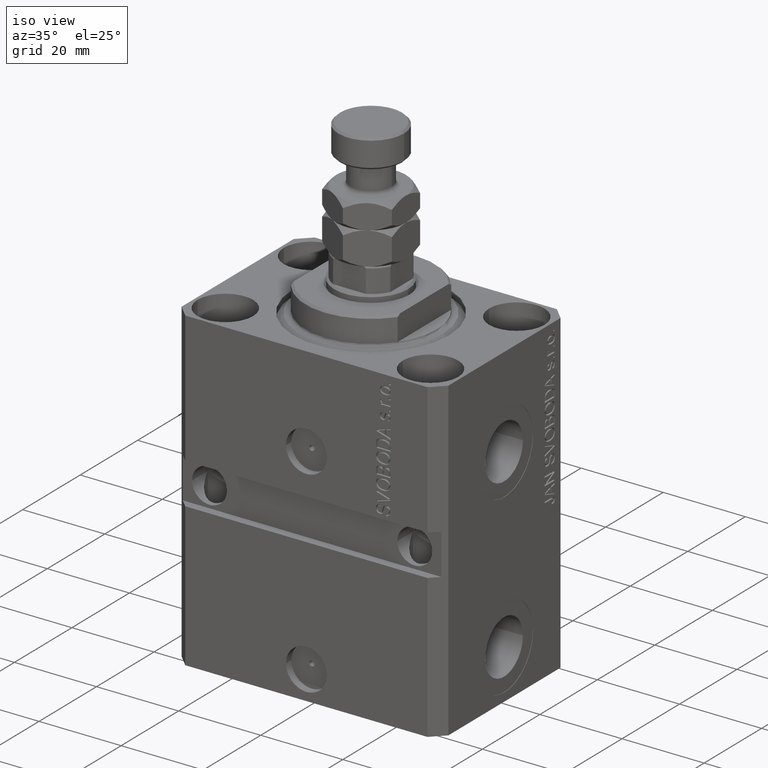
[diagram: clean part render]
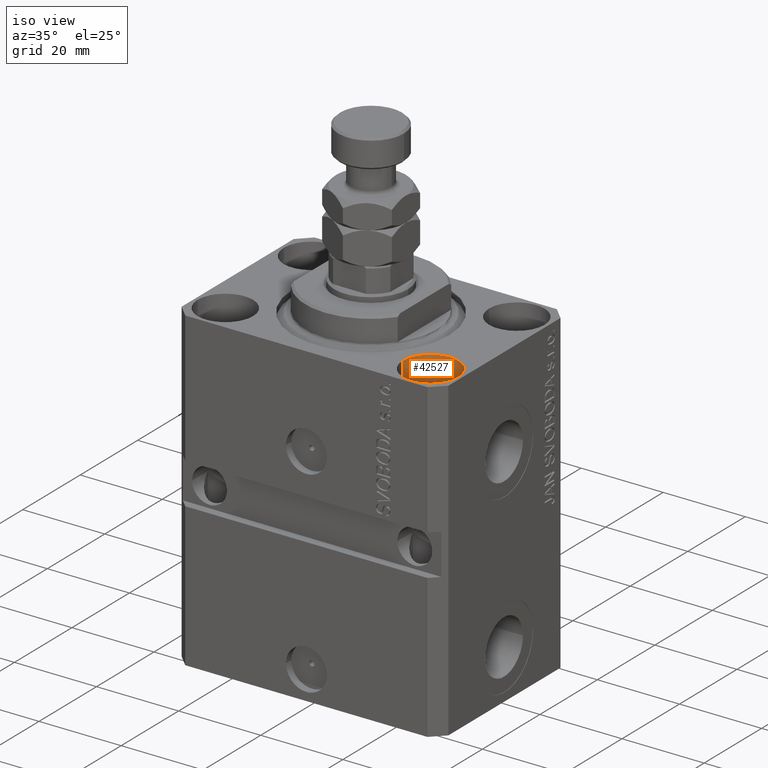
[diagram: same view with one face highlighted and labeled with its STEP entity id]
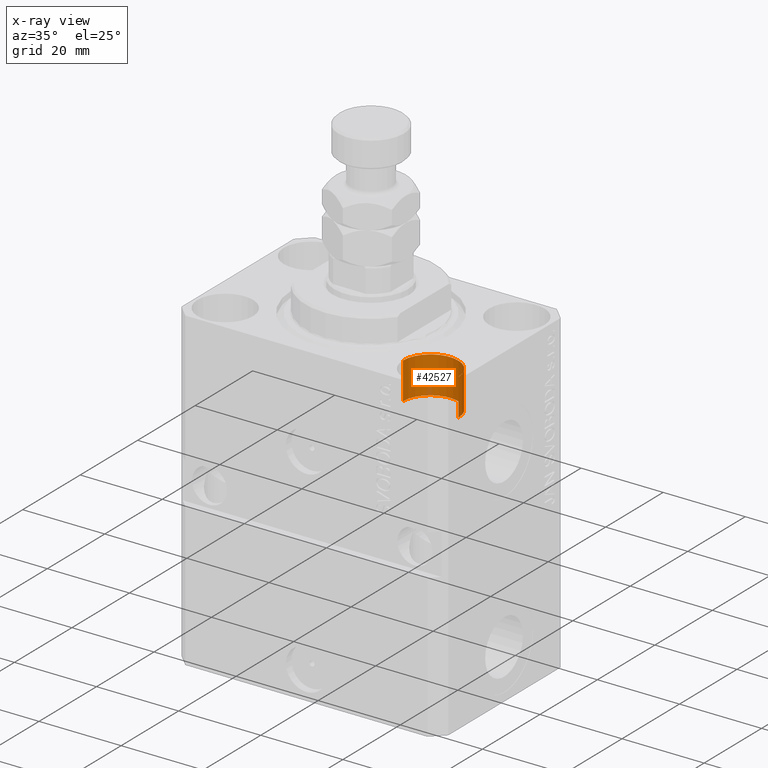
[diagram: x-ray of the same camera — body ghosted, the highlighted face saturated]
A machine part, iso view. The second image highlights one B-rep face of the part: STEP entity #42527.
The next image is the same camera in x-ray: the body ghosted, the highlighted face saturated — about 2% of this face is hidden behind the body in this view.
In plain terms, the highlighted cylindrical surface (edge-blend (fillet) strip) has radius 6.75 mm, axis along (0, 0, 1).
Its self-contained STEP definition (entity closure, byte-faithful):
#1559 = DIRECTION ( 'NONE',  ( 1.000000000000000000, 0.000000000000000000, 0.000000000000000000 ) ) ;
#2590 = LINE ( 'NONE', #10817, #48492 ) ;
#3853 = AXIS2_PLACEMENT_3D ( 'NONE', #31514, #39260, #1559 ) ;
#4360 = ORIENTED_EDGE ( 'NONE', *, *, #10213, .T. ) ;
#7801 = VERTEX_POINT ( 'NONE', #28578 ) ;
#9329 = CIRCLE ( 'NONE', #21262, 6.749999999977465137 ) ;
#10213 = EDGE_CURVE ( 'NONE', #35027, #16455, #9329, .T. ) ;
#10817 = CARTESIAN_POINT ( 'NONE',  ( 18.25000000002253842, -15.00000000000000000, -9.000000000000000000 ) ) ;
#13578 = EDGE_CURVE ( 'NONE', #7801, #16455, #2590, .T. ) ;
#14286 = ORIENTED_EDGE ( 'NONE', *, *, #28352, .F. ) ;
#16455 = VERTEX_POINT ( 'NONE', #38393 ) ;
#16892 = ORIENTED_EDGE ( 'NONE', *, *, #42720, .T. ) ;
#17161 = CARTESIAN_POINT ( 'NONE',  ( 31.74999999997746869, -15.00000000000000000, 0.000000000000000000 ) ) ;
#18055 = DIRECTION ( 'NONE',  ( -0.000000000000000000, -0.000000000000000000, 1.000000000000000000 ) ) ;
#18585 = DIRECTION ( 'NONE',  ( 1.000000000000000000, 0.000000000000000000, 0.000000000000000000 ) ) ;
#19582 = FACE_OUTER_BOUND ( 'NONE', #26606, .T. ) ;
#20073 = CYLINDRICAL_SURFACE ( 'NONE', #42401, 6.749999999977465137 ) ;
#21262 = AXIS2_PLACEMENT_3D ( 'NONE', #22340, #37559, #18585 ) ;
#22340 = CARTESIAN_POINT ( 'NONE',  ( 25.00000000000000355, -15.00000000000000000, 0.000000000000000000 ) ) ;
#26606 = EDGE_LOOP ( 'NONE', ( #35372, #14286, #16892, #4360 ) ) ;
#28352 = EDGE_CURVE ( 'NONE', #45649, #7801, #29378, .T. ) ;
#28578 = CARTESIAN_POINT ( 'NONE',  ( 18.25000000002253842, -15.00000000000000000, -9.000000000000000000 ) ) ;
#29378 = CIRCLE ( 'NONE', #3853, 6.749999999977465137 ) ;
#31064 = CARTESIAN_POINT ( 'NONE',  ( 25.00000000000000355, -15.00000000000000000, -9.000000000000000000 ) ) ;
#31514 = CARTESIAN_POINT ( 'NONE',  ( 25.00000000000000355, -15.00000000000000000, -9.000000000000000000 ) ) ;
#31543 = DIRECTION ( 'NONE',  ( 1.000000000000000000, 0.000000000000000000, 0.000000000000000000 ) ) ;
#32882 = CARTESIAN_POINT ( 'NONE',  ( 31.74999999997746869, -15.00000000000000000, -9.000000000000000000 ) ) ;
#33997 = DIRECTION ( 'NONE',  ( -0.000000000000000000, -0.000000000000000000, 1.000000000000000000 ) ) ;
#35027 = VERTEX_POINT ( 'NONE', #17161 ) ;
#35372 = ORIENTED_EDGE ( 'NONE', *, *, #13578, .F. ) ;
#37559 = DIRECTION ( 'NONE',  ( 0.000000000000000000, 0.000000000000000000, 1.000000000000000000 ) ) ;
#38393 = CARTESIAN_POINT ( 'NONE',  ( 18.25000000002253842, -15.00000000000000000, 0.000000000000000000 ) ) ;
#39260 = DIRECTION ( 'NONE',  ( 0.000000000000000000, 0.000000000000000000, 1.000000000000000000 ) ) ;
#41257 = CARTESIAN_POINT ( 'NONE',  ( 31.74999999997746869, -15.00000000000000000, -9.000000000000000000 ) ) ;
#41507 = LINE ( 'NONE', #41257, #45570 ) ;
#42401 = AXIS2_PLACEMENT_3D ( 'NONE', #31064, #47022, #31543 ) ;
#42527 = ADVANCED_FACE ( 'NONE', ( #19582 ), #20073, .F. ) ;
#42720 = EDGE_CURVE ( 'NONE', #45649, #35027, #41507, .T. ) ;
#45570 = VECTOR ( 'NONE', #33997, 1000.000000000000000 ) ;
#45649 = VERTEX_POINT ( 'NONE', #32882 ) ;
#47022 = DIRECTION ( 'NONE',  ( -0.000000000000000000, -0.000000000000000000, 1.000000000000000000 ) ) ;
#48492 = VECTOR ( 'NONE', #18055, 1000.000000000000000 ) ;